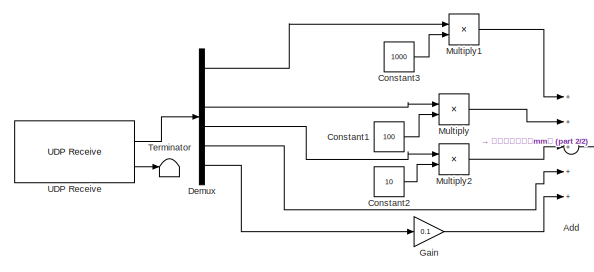
[diagram: root canvas - part 1/2, top left region]
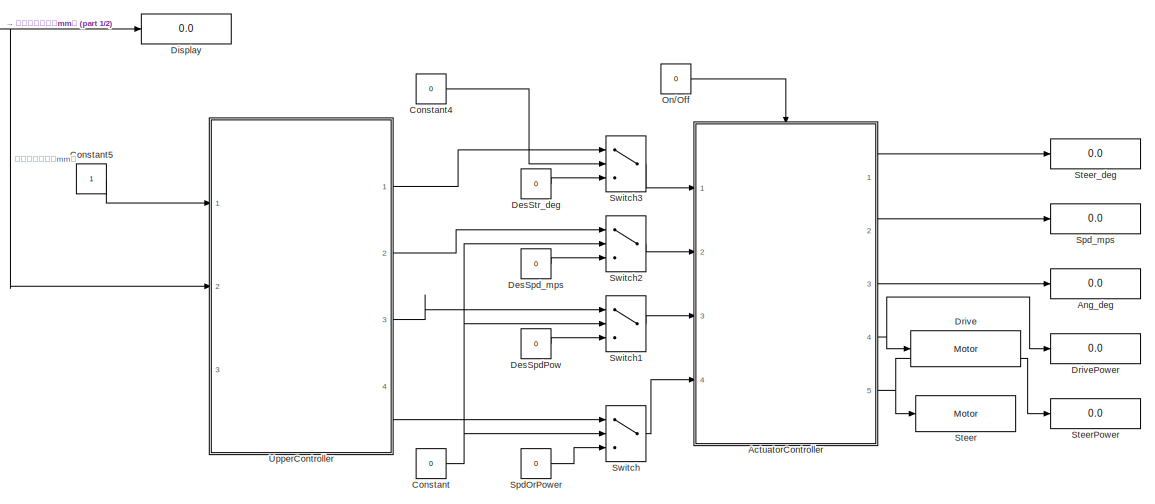
[diagram: root canvas - part 2/2, right side, full height]
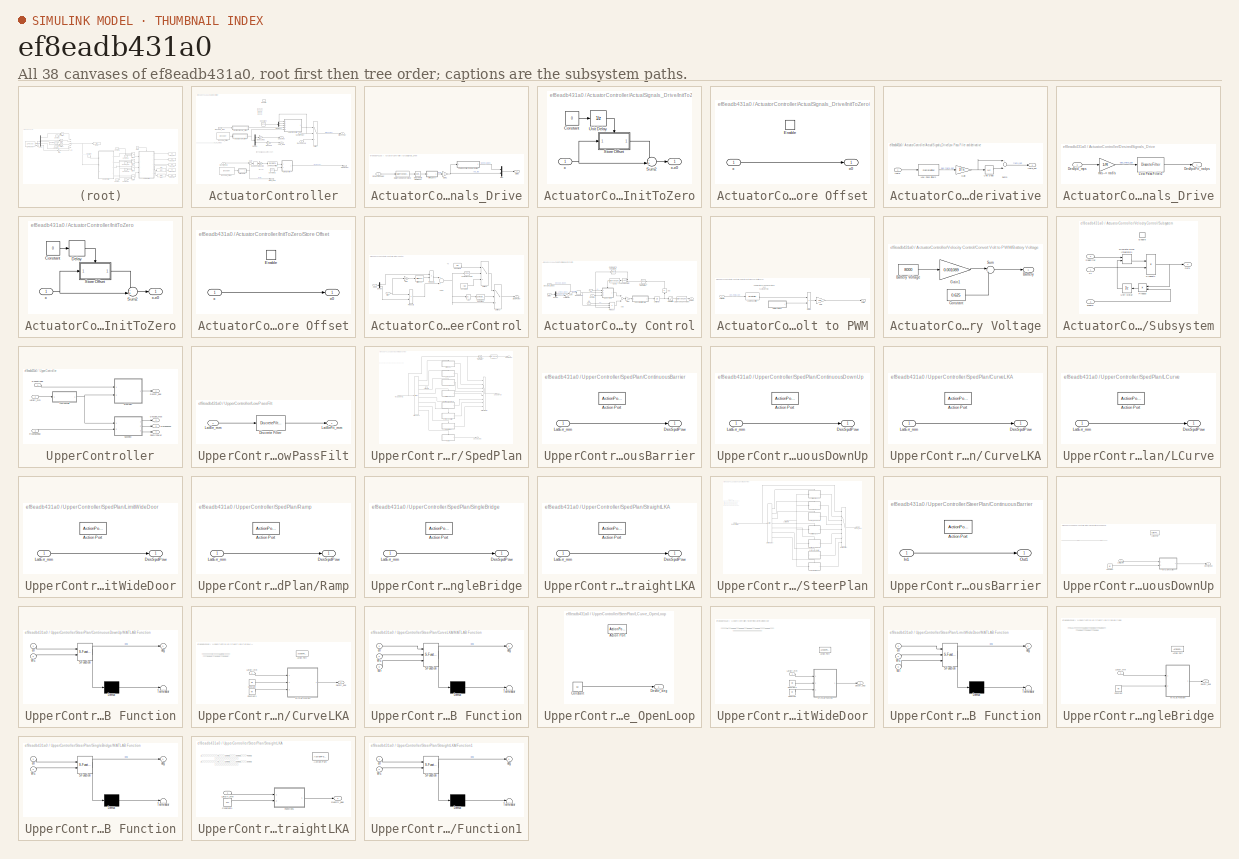
[diagram: thumbnail index - all 38 canvases of the model, root first then tree order]
MODEL slx_ef8eadb431a0
KIND model
CONFIG AbsTol = auto
CONFIG EnableMultiTasking = on
CONFIG FixedStep = auto
CONFIG InitFcn = Ts=0.015; %采样时间\nR=0.0344 %车轮半径，m\nWr=290 %赛道宽度290mm\nWc=187 %小车宽度187mm\nWl=250; %限宽门宽度250mm\nK1=[0.4175;0.5498]; %速度控制的Ki、Kp参数\nK2=[0.02;0.7]; %转向控制的Kd、Kp参数
CONFIG MaxStep = auto
CONFIG MinStep = auto
CONFIG RelTol = 1e-3
CONFIG SampleTimeConstraint = Unconstrained
CONFIG Solver = ode45
CONFIG SolverName = ode45
CONFIG StartTime = 0.0
CONFIG StopTime = 10.0
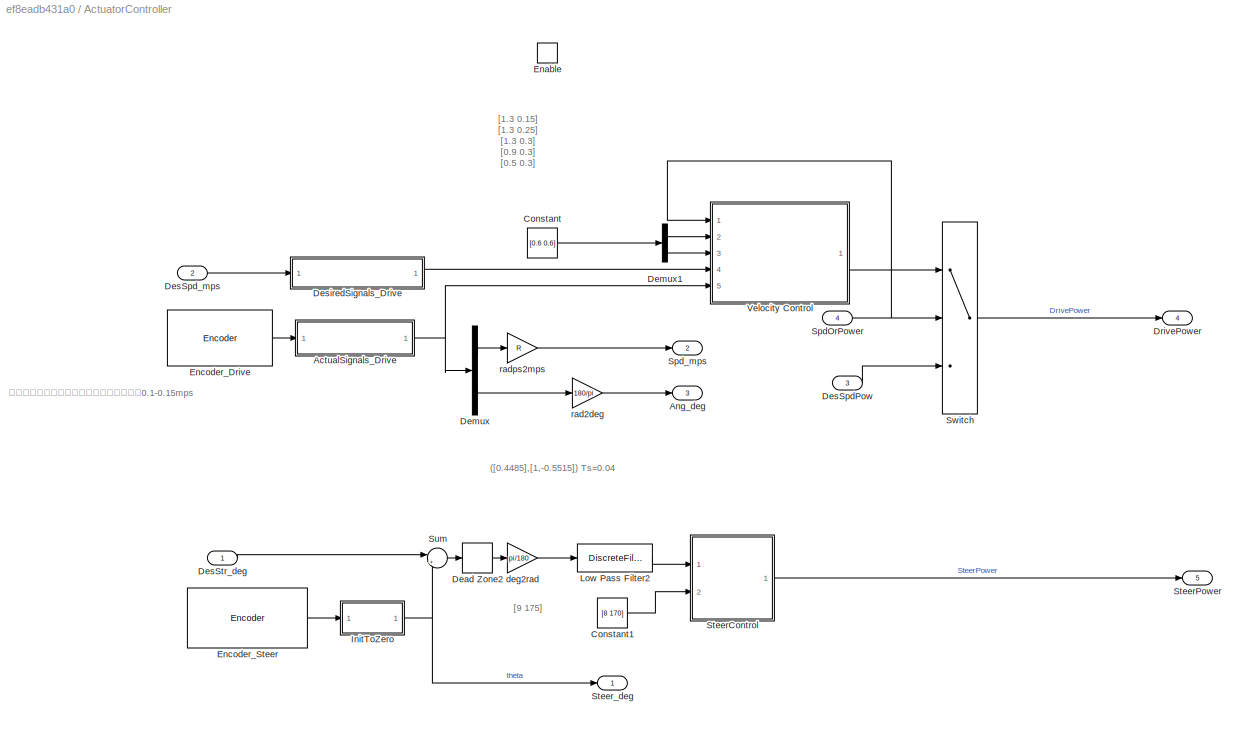
BLOCK [SubSystem] ActuatorController
  Ports = [4, 5, 1]
  RequestExecContextInheritance = off
BLOCK [SubSystem] ActuatorController/ActualSignals_Drive
  Ports = [1, 1]
  RequestExecContextInheritance = off
BLOCK [DataTypeConversion] ActuatorController/ActualSignals_Drive/Data Type Conversion2
  OutDataTypeStr = double
  RndMeth = Floor
  SaturateOnIntegerOverflow = off
BLOCK [Reference] ActuatorController/ActualSignals_Drive/Degrees to Radians2  REF=simulink_extras/Transformations/Degrees to
Radians
  Ports = [1, 1]
  SourceBlock = simulink_extras/Transformations/Degrees to\nRadians
  SourceProductBaseCode = SL
  SourceProductName = Simulink
  SourceType = DegreesToRadians
BLOCK [Inport] ActuatorController/ActualSignals_Drive/DriverEncoder
  IconDisplay = Port number
BLOCK [Gain] ActuatorController/ActualSignals_Drive/Gain1
  Gain = -1
  OutDataTypeStr = Inherit: Inherit via internal rule
  ParamDataTypeStr = Inherit: Inherit via internal rule
  SaturateOnIntegerOverflow = off
BLOCK [SubSystem] ActuatorController/ActualSignals_Drive/InitToZero
  Ports = [1, 1]
  RequestExecContextInheritance = off
BLOCK [Constant] ActuatorController/ActualSignals_Drive/InitToZero/Constant
  OutDataTypeStr = boolean
  Value = 0
BLOCK [SubSystem] ActuatorController/ActualSignals_Drive/InitToZero/Store Offset
  Ports = [1, 1, 1]
  RequestExecContextInheritance = off
  TreatAsAtomicUnit = on
BLOCK [EnablePort] ActuatorController/ActualSignals_Drive/InitToZero/Store Offset/Enable
  Ports = []
BLOCK [Inport] ActuatorController/ActualSignals_Drive/InitToZero/Store Offset/x
  IconDisplay = Port number
BLOCK [Outport] ActuatorController/ActualSignals_Drive/InitToZero/Store Offset/x0
  IconDisplay = Port number
  InitialOutput = 0
BLOCK [Sum] ActuatorController/ActualSignals_Drive/InitToZero/Sum2
  IconShape = round
  InputSameDT = off
  Inputs = -+|
  OutDataTypeStr = Inherit: Inherit via internal rule
  Ports = [2, 1]
  SaturateOnIntegerOverflow = off
BLOCK [UnitDelay] ActuatorController/ActualSignals_Drive/InitToZero/Unit Delay
  InitialCondition = 1
  InputProcessing = Elements as channels (sample based)
  SampleTime = -1
BLOCK [Inport] ActuatorController/ActualSignals_Drive/InitToZero/x
  IconDisplay = Port number
BLOCK [Outport] ActuatorController/ActualSignals_Drive/InitToZero/x-x0
  IconDisplay = Port number
BLOCK [SubSystem] ActuatorController/ActualSignals_Drive/Low Pass Filer and derivative
  Ports = [1, 1]
  RequestExecContextInheritance = off
BLOCK [Gain] ActuatorController/ActualSignals_Drive/Low Pass Filer and derivative/Gain
  Gain = 1/Ts
  OutDataTypeStr = Inherit: Inherit via internal rule
  ParamDataTypeStr = Inherit: Inherit via internal rule
  SaturateOnIntegerOverflow = off
BLOCK [DiscreteFilter] ActuatorController/ActualSignals_Drive/Low Pass Filer and derivative/Low Pass Filter2
  Denominator = [1 -0.85]
  InputPortMap = u0
  Numerator = [0.15]
  Ports = [1, 1]
BLOCK [Sum] ActuatorController/ActualSignals_Drive/Low Pass Filer and derivative/Sum3
  InputSameDT = off
  Inputs = +-
  OutDataTypeStr = Inherit: Inherit via internal rule
  Ports = [2, 1]
  SaturateOnIntegerOverflow = off
BLOCK [UnitDelay] ActuatorController/ActualSignals_Drive/Low Pass Filer and derivative/Unit Delay
  InputProcessing = Elements as channels (sample based)
  SampleTime = -1
BLOCK [Inport] ActuatorController/ActualSignals_Drive/Low Pass Filer and derivative/theta
  IconDisplay = Port number
BLOCK [Outport] ActuatorController/ActualSignals_Drive/Low Pass Filer and derivative/theta_dot
  IconDisplay = Port number
BLOCK [Mux] ActuatorController/ActualSignals_Drive/Mux
  DisplayOption = bar
  Inputs = 2
  Ports = [2, 1]
BLOCK [Outport] ActuatorController/ActualSignals_Drive/States 
  IconDisplay = Port number
BLOCK [Outport] ActuatorController/Ang_deg
  IconDisplay = Port number
  Port = 3
BLOCK [Constant] ActuatorController/Constant
  Value = [0.6 0.6]
BLOCK [Constant] ActuatorController/Constant1
  Value = [8 170]
BLOCK [DeadZone] ActuatorController/Dead Zone2
  LowerValue = -1
  UpperValue = 1
BLOCK [Demux] ActuatorController/Demux
  DisplayOption = bar
  Outputs = 2
  Ports = [1, 2]
BLOCK [Demux] ActuatorController/Demux1
  DisplayOption = bar
  Outputs = 2
  Ports = [1, 2]
BLOCK [Inport] ActuatorController/DesSpdPow
  IconDisplay = Port number
  Port = 3
BLOCK [Inport] ActuatorController/DesSpd_mps
  IconDisplay = Port number
  Port = 2
BLOCK [Inport] ActuatorController/DesStr_deg
  IconDisplay = Port number
BLOCK [SubSystem] ActuatorController/DesiredSignals_Drive
  Ports = [1, 1]
  RequestExecContextInheritance = off
BLOCK [Outport] ActuatorController/DesiredSignals_Drive/DesSpdFit_radps
  IconDisplay = Port number
BLOCK [Inport] ActuatorController/DesiredSignals_Drive/DesSpd_mps
  IconDisplay = Port number
BLOCK [DiscreteFilter] ActuatorController/DesiredSignals_Drive/Low Pass Filter2
  Denominator = [1 -0.85]
  InputPortMap = u0
  Numerator = [0.15]
  Ports = [1, 1]
BLOCK [Gain] ActuatorController/DesiredSignals_Drive/m//s --> rad//s
  Gain = 1/R
  OutDataTypeStr = Inherit: Inherit via internal rule
  ParamDataTypeStr = Inherit: Inherit via internal rule
  SaturateOnIntegerOverflow = off
BLOCK [Outport] ActuatorController/DrivePower
  IconDisplay = Port number
  InitialOutput = 0
  OutputWhenDisabled = reset
  Port = 4
BLOCK [EnablePort] ActuatorController/Enable
  Ports = []
  StatesWhenEnabling = reset
BLOCK [Reference] ActuatorController/Encoder_Drive  REF=legoev3lib/Encoder
  Ports = [0, 1]
  SourceBlock = legoev3lib/Encoder
  SourceProductBaseCode = LEGOEV3
  SourceProductName = Simulink Support Package for LEGO MINDSTORMS EV3 Hardware
  SourceType = LEGO MINDSTORMS EV3 Encoder
BLOCK [Reference] ActuatorController/Encoder_Steer  REF=legoev3lib/Encoder
  Ports = [0, 1]
  SourceBlock = legoev3lib/Encoder
  SourceProductBaseCode = LEGOEV3
  SourceProductName = Simulink Support Package for LEGO MINDSTORMS EV3 Hardware
  SourceType = LEGO MINDSTORMS EV3 Encoder
BLOCK [SubSystem] ActuatorController/InitToZero
  Ports = [1, 1]
  RequestExecContextInheritance = off
BLOCK [Constant] ActuatorController/InitToZero/Constant
  OutDataTypeStr = boolean
  Value = 0
BLOCK [Delay] ActuatorController/InitToZero/Delay
  DelayLength = 3
  InitialCondition = 1
  InputPortMap = u0
  Ports = [1, 1]
BLOCK [SubSystem] ActuatorController/InitToZero/Store Offset
  Ports = [1, 1, 1]
  RequestExecContextInheritance = off
  TreatAsAtomicUnit = on
BLOCK [EnablePort] ActuatorController/InitToZero/Store Offset/Enable
  Ports = []
BLOCK [Inport] ActuatorController/InitToZero/Store Offset/x
  IconDisplay = Port number
BLOCK [Outport] ActuatorController/InitToZero/Store Offset/x0
  IconDisplay = Port number
  InitialOutput = 0
BLOCK [Sum] ActuatorController/InitToZero/Sum2
  IconShape = round
  InputSameDT = off
  Inputs = -+|
  OutDataTypeStr = Inherit: Inherit via internal rule
  Ports = [2, 1]
  SaturateOnIntegerOverflow = off
BLOCK [Inport] ActuatorController/InitToZero/x
  IconDisplay = Port number
BLOCK [Outport] ActuatorController/InitToZero/x-x0
  IconDisplay = Port number
BLOCK [DiscreteFilter] ActuatorController/Low Pass Filter2
  Denominator = [1 -0.8]
  InputPortMap = u0
  Numerator = [.2]
  Ports = [1, 1]
BLOCK [Inport] ActuatorController/SpdOrPower
  IconDisplay = Port number
  Port = 4
BLOCK [Outport] ActuatorController/Spd_mps
  IconDisplay = Port number
  Port = 2
BLOCK [SubSystem] ActuatorController/SteerControl
  Ports = [2, 1]
  RequestExecContextInheritance = off
BLOCK [Abs] ActuatorController/SteerControl/Abs
  SaturateOnIntegerOverflow = off
BLOCK [Sum] ActuatorController/SteerControl/Add2
  InputSameDT = off
  OutDataTypeStr = Inherit: Inherit via internal rule
  Ports = [2, 1]
  SaturateOnIntegerOverflow = off
BLOCK [Reference] ActuatorController/SteerControl/Compare To Constant  REF=simulink/Logic and Bit
Operations/Compare
To Constant
  Ports = [1, 1]
  SourceBlock = simulink/Logic and Bit\nOperations/Compare\nTo Constant
  SourceProductBaseCode = SL
  SourceProductName = Simulink
  SourceType = Compare To Constant
BLOCK [Reference] ActuatorController/SteerControl/Compare To Zero  REF=simulink/Logic and Bit
Operations/Compare
To Zero
  Ports = [1, 1]
  SourceBlock = simulink/Logic and Bit\nOperations/Compare\nTo Zero
  SourceProductBaseCode = SL
  SourceProductName = Simulink
  SourceType = Compare To Zero
BLOCK [Constant] ActuatorController/SteerControl/Constant1
  Value = 60
BLOCK [Constant] ActuatorController/SteerControl/Constant2
  Value = -60
BLOCK [Demux] ActuatorController/SteerControl/Demux
  DisplayOption = bar
  Outputs = 2
  Ports = [1, 2]
BLOCK [Reference] ActuatorController/SteerControl/Difference  REF=simulink/Discrete/Difference
  Ports = [1, 1]
  SourceBlock = simulink/Discrete/Difference
  SourceProductBaseCode = SL
  SourceProductName = Simulink
  SourceType = Difference
BLOCK [Inport] ActuatorController/SteerControl/Error
  IconDisplay = Port number
BLOCK [Gain] ActuatorController/SteerControl/Gain
  Gain = 1/Ts
  OutDataTypeStr = Inherit: Inherit via internal rule
  ParamDataTypeStr = Inherit: Inherit via internal rule
  SaturateOnIntegerOverflow = off
BLOCK [Inport] ActuatorController/SteerControl/KdKp
  IconDisplay = Port number
  Port = 2
BLOCK [Product] ActuatorController/SteerControl/Product2
  InputSameDT = off
  OutDataTypeStr = Inherit: Inherit via internal rule
  Ports = [2, 1]
  RndMeth = Floor
  SaturateOnIntegerOverflow = off
BLOCK [Product] ActuatorController/SteerControl/Product3
  InputSameDT = off
  OutDataTypeStr = Inherit: Inherit via internal rule
  Ports = [2, 1]
  RndMeth = Floor
  SaturateOnIntegerOverflow = off
BLOCK [Outport] ActuatorController/SteerControl/SteerPower
  IconDisplay = Port number
BLOCK [Switch] ActuatorController/SteerControl/Switch1
  Criteria = u2 > Threshold
  InputSameDT = off
  SaturateOnIntegerOverflow = off
BLOCK [Switch] ActuatorController/SteerControl/Switch2
  Criteria = u2 > Threshold
  InputSameDT = off
  SaturateOnIntegerOverflow = off
BLOCK [Outport] ActuatorController/SteerPower
  IconDisplay = Port number
  InitialOutput = 0
  OutputWhenDisabled = reset
  Port = 5
BLOCK [Outport] ActuatorController/Steer_deg
  IconDisplay = Port number
BLOCK [Sum] ActuatorController/Sum
  IconShape = round
  InputSameDT = off
  Inputs = |+-
  OutDataTypeStr = Inherit: Inherit via internal rule
  Ports = [2, 1]
  SaturateOnIntegerOverflow = off
BLOCK [Switch] ActuatorController/Switch
  Criteria = u2 > Threshold
  InputSameDT = off
  SaturateOnIntegerOverflow = off
  Threshold = 0.5
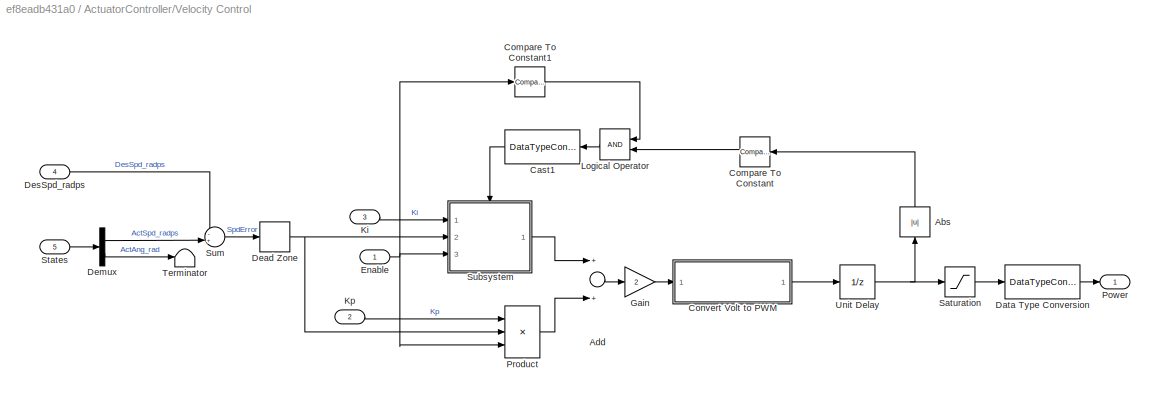
BLOCK [SubSystem] ActuatorController/Velocity Control
  Ports = [5, 1]
  RequestExecContextInheritance = off
BLOCK [Abs] ActuatorController/Velocity Control/Abs
  SaturateOnIntegerOverflow = off
BLOCK [Sum] ActuatorController/Velocity Control/Add
  InputSameDT = off
  OutDataTypeStr = Inherit: Inherit via internal rule
  Ports = [2, 1]
  SaturateOnIntegerOverflow = off
BLOCK [DataTypeConversion] ActuatorController/Velocity Control/Cast1
  RndMeth = Floor
  SaturateOnIntegerOverflow = off
BLOCK [Reference] ActuatorController/Velocity Control/Compare To Constant  REF=simulink/Logic and Bit
Operations/Compare
To Constant
  Ports = [1, 1]
  SourceBlock = simulink/Logic and Bit\nOperations/Compare\nTo Constant
  SourceProductBaseCode = SL
  SourceProductName = Simulink
  SourceType = Compare To Constant
BLOCK [Reference] ActuatorController/Velocity Control/Compare To Constant1  REF=simulink/Logic and Bit
Operations/Compare
To Constant
  Ports = [1, 1]
  SourceBlock = simulink/Logic and Bit\nOperations/Compare\nTo Constant
  SourceProductBaseCode = SL
  SourceProductName = Simulink
  SourceType = Compare To Constant
BLOCK [SubSystem] ActuatorController/Velocity Control/Convert Volt to PWM
  Ports = [1, 1]
  RequestExecContextInheritance = off
BLOCK [SubSystem] ActuatorController/Velocity Control/Convert Volt to PWM/Battery Voltage
  Ports = [0, 1]
  RequestExecContextInheritance = off
BLOCK [Outport] ActuatorController/Velocity Control/Convert Volt to PWM/Battery Voltage/Battery
  IconDisplay = Port number
BLOCK [Constant] ActuatorController/Velocity Control/Convert Volt to PWM/Battery Voltage/Battery Voltage
  Value = 8000
BLOCK [Constant] ActuatorController/Velocity Control/Convert Volt to PWM/Battery Voltage/Constant
  Value = 0.625
BLOCK [Gain] ActuatorController/Velocity Control/Convert Volt to PWM/Battery Voltage/Gain1
  Gain = 0.001089
  OutDataTypeStr = Inherit: Inherit via internal rule
  ParamDataTypeStr = Inherit: Inherit via internal rule
  SaturateOnIntegerOverflow = off
BLOCK [Sum] ActuatorController/Velocity Control/Convert Volt to PWM/Battery Voltage/Sum
  IconShape = round
  InputSameDT = off
  Inputs = |+-
  OutDataTypeStr = Inherit: Inherit via internal rule
  Ports = [2, 1]
  SaturateOnIntegerOverflow = off
BLOCK [Product] ActuatorController/Velocity Control/Convert Volt to PWM/Divide
  InputSameDT = off
  Inputs = */
  OutDataTypeStr = Inherit: Inherit via internal rule
  Ports = [2, 1]
  RndMeth = Floor
  SaturateOnIntegerOverflow = off
BLOCK [Gain] ActuatorController/Velocity Control/Convert Volt to PWM/Gain
  Gain = 100
  OutDataTypeStr = Inherit: Inherit via internal rule
  ParamDataTypeStr = Inherit: Inherit via internal rule
  SaturateOnIntegerOverflow = off
BLOCK [DiscreteFilter] ActuatorController/Velocity Control/Convert Volt to PWM/Low Pass Filter
  Denominator = [1 -0.85]
  InputPortMap = u0
  Numerator = [0.15]
  Ports = [1, 1]
BLOCK [Outport] ActuatorController/Velocity Control/Convert Volt to PWM/PWM
  IconDisplay = Port number
BLOCK [Inport] ActuatorController/Velocity Control/Convert Volt to PWM/Volt Cmd
  IconDisplay = Port number
BLOCK [DataTypeConversion] ActuatorController/Velocity Control/Data Type Conversion
  OutDataTypeStr = int8
  RndMeth = Floor
  SaturateOnIntegerOverflow = off
BLOCK [DeadZone] ActuatorController/Velocity Control/Dead Zone
  LowerValue = -0.01
  UpperValue = 0.01
BLOCK [Demux] ActuatorController/Velocity Control/Demux
  DisplayOption = bar
  Outputs = 2
  Ports = [1, 2]
BLOCK [Inport] ActuatorController/Velocity Control/DesSpd_radps
  IconDisplay = Port number
  Port = 4
BLOCK [Inport] ActuatorController/Velocity Control/Enable 
  IconDisplay = Port number
BLOCK [Gain] ActuatorController/Velocity Control/Gain
  Gain = 2
  OutDataTypeStr = Inherit: Inherit via internal rule
  ParamDataTypeStr = Inherit: Inherit via internal rule
  SaturateOnIntegerOverflow = off
BLOCK [Inport] ActuatorController/Velocity Control/Ki
  IconDisplay = Port number
  Port = 3
BLOCK [Inport] ActuatorController/Velocity Control/Kp
  IconDisplay = Port number
  Port = 2
BLOCK [Logic] ActuatorController/Velocity Control/Logical Operator
  AllPortsSameDT = off
  OutDataTypeStr = boolean
  Ports = [2, 1]
BLOCK [Outport] ActuatorController/Velocity Control/Power
  IconDisplay = Port number
  InitialOutput = 0
  OutputWhenDisabled = reset
BLOCK [Product] ActuatorController/Velocity Control/Product
  InputSameDT = off
  Inputs = 3
  OutDataTypeStr = Inherit: Inherit via internal rule
  Ports = [3, 1]
  RndMeth = Floor
  SaturateOnIntegerOverflow = off
BLOCK [Saturate] ActuatorController/Velocity Control/Saturation
  InputPortMap = u0
  LowerLimit = -100
  Ports = [1, 1]
  UpperLimit = 100
BLOCK [Inport] ActuatorController/Velocity Control/States
  IconDisplay = Port number
  Port = 5
BLOCK [SubSystem] ActuatorController/Velocity Control/Subsystem
  Ports = [3, 1, 1]
  RequestExecContextInheritance = off
BLOCK [DiscreteIntegrator] ActuatorController/Velocity Control/Subsystem/Discrete-Time Integrator1
  ICPrevOutput = DiscIntNeverNeededParam
  ICPrevScaledInput = DiscIntNeverNeededParam
  InitialConditionSource = external
  Ports = [2, 1]
  SampleTime = -1
BLOCK [EnablePort] ActuatorController/Velocity Control/Subsystem/Enable
  Ports = []
  StatesWhenEnabling = reset
BLOCK [Inport] ActuatorController/Velocity Control/Subsystem/Ki
  IconDisplay = Port number
BLOCK [Outport] ActuatorController/Velocity Control/Subsystem/Out1
  IconDisplay = Port number
BLOCK [Product] ActuatorController/Velocity Control/Subsystem/Product
  InputSameDT = off
  OutDataTypeStr = Inherit: Inherit via internal rule
  Ports = [2, 1]
  RndMeth = Floor
  SaturateOnIntegerOverflow = off
BLOCK [Product] ActuatorController/Velocity Control/Subsystem/Product1
  InputSameDT = off
  OutDataTypeStr = Inherit: Inherit via internal rule
  Ports = [2, 1]
  RndMeth = Floor
  SaturateOnIntegerOverflow = off
BLOCK [Inport] ActuatorController/Velocity Control/Subsystem/SpdError
  IconDisplay = Port number
  Port = 2
BLOCK [UnitDelay] ActuatorController/Velocity Control/Subsystem/Unit Delay
  InputProcessing = Elements as channels (sample based)
  SampleTime = -1
BLOCK [Inport] ActuatorController/Velocity Control/Subsystem/enable
  IconDisplay = Port number
  Port = 3
BLOCK [Sum] ActuatorController/Velocity Control/Sum
  IconShape = round
  InputSameDT = off
  Inputs = -+|
  OutDataTypeStr = Inherit: Inherit via internal rule
  Ports = [2, 1]
  SaturateOnIntegerOverflow = off
BLOCK [Terminator] ActuatorController/Velocity Control/Terminator
BLOCK [UnitDelay] ActuatorController/Velocity Control/Unit Delay
  InputProcessing = Elements as channels (sample based)
  SampleTime = -1
BLOCK [Gain] ActuatorController/deg2rad
  Gain = pi/180
  OutDataTypeStr = Inherit: Inherit via internal rule
  ParamDataTypeStr = Inherit: Inherit via internal rule
  SaturateOnIntegerOverflow = off
BLOCK [Gain] ActuatorController/rad2deg
  Gain = 180/pi
  OutDataTypeStr = Inherit: Inherit via internal rule
  ParamDataTypeStr = Inherit: Inherit via internal rule
  SaturateOnIntegerOverflow = off
BLOCK [Gain] ActuatorController/radps2mps
  Gain = R
  OutDataTypeStr = Inherit: Inherit via internal rule
  ParamDataTypeStr = Inherit: Inherit via internal rule
  SaturateOnIntegerOverflow = off
BLOCK [Sum] Add
  InputSameDT = off
  Inputs = +++++
  OutDataTypeStr = Inherit: Inherit via internal rule
  Ports = [5, 1]
  SaturateOnIntegerOverflow = off
BLOCK [Display] Ang_deg
  Decimation = 1
  Ports = [1]
BLOCK [Constant] Constant
  Value = 0
BLOCK [Constant] Constant1
  Value = 100
BLOCK [Constant] Constant2
  Value = 10
BLOCK [Constant] Constant3
  Value = 1000
BLOCK [Constant] Constant4
  Value = 0
BLOCK [Constant] Constant5
BLOCK [Demux] Demux
  DisplayOption = bar
  Outputs = 6
  Ports = [1, 6]
BLOCK [Constant] DesSpdPow
  Value = 0
BLOCK [Constant] DesSpd_mps
  Value = 0
BLOCK [Constant] DesStr_deg
  Value = 0
BLOCK [Display] Display
  Decimation = 1
  Ports = [1]
BLOCK [Reference] Drive  REF=legoev3lib/Motor
  Ports = [1]
  SourceBlock = legoev3lib/Motor
  SourceProductBaseCode = LEGOEV3
  SourceProductName = Simulink Support Package for LEGO MINDSTORMS EV3 Hardware
  SourceType = LEGO MINDSTORMS EV3 Motor
BLOCK [Display] DrivePower
  Decimation = 1
  Ports = [1]
BLOCK [Gain] Gain
  Gain = 0.1
  OutDataTypeStr = Inherit: Inherit via internal rule
  ParamDataTypeStr = Inherit: Inherit via internal rule
  SaturateOnIntegerOverflow = off
BLOCK [Product] Multiply
  InputSameDT = off
  OutDataTypeStr = Inherit: Inherit via internal rule
  Ports = [2, 1]
  RndMeth = Floor
  SaturateOnIntegerOverflow = off
BLOCK [Product] Multiply1
  InputSameDT = off
  OutDataTypeStr = Inherit: Inherit via internal rule
  Ports = [2, 1]
  RndMeth = Floor
  SaturateOnIntegerOverflow = off
BLOCK [Product] Multiply2
  InputSameDT = off
  OutDataTypeStr = Inherit: Inherit via internal rule
  Ports = [2, 1]
  RndMeth = Floor
  SaturateOnIntegerOverflow = off
BLOCK [Constant] On//Off
  Value = 0
BLOCK [Constant] SpdOrPower
  Value = 0
BLOCK [Display] Spd_mps
  Decimation = 1
  Ports = [1]
BLOCK [Reference] Steer  REF=legoev3lib/Motor
  Ports = [1]
  SourceBlock = legoev3lib/Motor
  SourceProductBaseCode = LEGOEV3
  SourceProductName = Simulink Support Package for LEGO MINDSTORMS EV3 Hardware
  SourceType = LEGO MINDSTORMS EV3 Motor
BLOCK [Display] SteerPower
  Decimation = 1
  Ports = [1]
BLOCK [Display] Steer_deg
  Decimation = 1
  Ports = [1]
BLOCK [Switch] Switch
  Criteria = u2 > Threshold
  InputSameDT = off
  SaturateOnIntegerOverflow = off
BLOCK [Switch] Switch1
  Criteria = u2 > Threshold
  InputSameDT = off
  SaturateOnIntegerOverflow = off
BLOCK [Switch] Switch2
  Criteria = u2 > Threshold
  InputSameDT = off
  SaturateOnIntegerOverflow = off
BLOCK [Switch] Switch3
  Criteria = u2 > Threshold
  InputSameDT = off
  SaturateOnIntegerOverflow = off
BLOCK [Terminator] Terminator
BLOCK [Reference] UDP Receive  REF=legoev3lib/UDP Receive
  Ports = [0, 2]
  SourceBlock = legoev3lib/UDP Receive
  SourceProductBaseCode = LEGOEV3
  SourceProductName = Simulink Support Package for LEGO MINDSTORMS EV3 Hardware
  SourceType = UDP Receive
BLOCK [SubSystem] UpperController
  Ports = [3, 4]
  RequestExecContextInheritance = off
BLOCK [Outport] UpperController/DesSpdPow
  IconDisplay = Port number
  Port = 3
BLOCK [Outport] UpperController/DesSpd_mps
  IconDisplay = Port number
  Port = 2
BLOCK [Outport] UpperController/DesStr_deg
  IconDisplay = Port number
BLOCK [Inport] UpperController/LatErr_mm
  IconDisplay = Port number
  Port = 2
BLOCK [SubSystem] UpperController/LowPassFilt
  Ports = [1, 1]
  RequestExecContextInheritance = off
BLOCK [DiscreteFilter] UpperController/LowPassFilt/Discrete Filter
  Denominator = [1 -0.4331]
  InputPortMap = u0
  Numerator = [0.2 0.3669]
  Ports = [1, 1]
BLOCK [Outport] UpperController/LowPassFilt/LatErrFit_mm
  IconDisplay = Port number
BLOCK [Inport] UpperController/LowPassFilt/LatErr_mm
  IconDisplay = Port number
BLOCK [Inport] UpperController/RoadSpdFlag
  IconDisplay = Port number
  Port = 3
BLOCK [Inport] UpperController/RoadStrFlag
  IconDisplay = Port number
BLOCK [Outport] UpperController/SpdOrPower
  IconDisplay = Port number
  Port = 4
BLOCK [SubSystem] UpperController/SpedPlan
  Ports = [2, 3]
  RequestExecContextInheritance = off
BLOCK [DataTypeConversion] UpperController/SpedPlan/Cast
  RndMeth = Floor
  SaturateOnIntegerOverflow = off
BLOCK [Reference] UpperController/SpedPlan/Compare To Constant  REF=simulink/Logic and Bit
Operations/Compare
To Constant
  Ports = [1, 1]
  SourceBlock = simulink/Logic and Bit\nOperations/Compare\nTo Constant
  SourceProductBaseCode = SL
  SourceProductName = Simulink
  SourceType = Compare To Constant
BLOCK [SubSystem] UpperController/SpedPlan/ContinuousBarrier
  Ports = [1, 1, 0, 0, 0, 0, 0, 1]
  RequestExecContextInheritance = off
  TreatAsAtomicUnit = on
BLOCK [ActionPort] UpperController/SpedPlan/ContinuousBarrier/Action Port
  ActionType = case
BLOCK [Outport] UpperController/SpedPlan/ContinuousBarrier/DesSpdPow
  IconDisplay = Port number
BLOCK [Inport] UpperController/SpedPlan/ContinuousBarrier/LatErr_mm
  IconDisplay = Port number
BLOCK [SubSystem] UpperController/SpedPlan/ContinuousDownUp
  Ports = [1, 1, 0, 0, 0, 0, 0, 1]
  RequestExecContextInheritance = off
  TreatAsAtomicUnit = on
BLOCK [ActionPort] UpperController/SpedPlan/ContinuousDownUp/Action Port
  ActionType = case
BLOCK [Outport] UpperController/SpedPlan/ContinuousDownUp/DesSpdPow
  IconDisplay = Port number
BLOCK [Inport] UpperController/SpedPlan/ContinuousDownUp/LatErr_mm
  IconDisplay = Port number
BLOCK [SubSystem] UpperController/SpedPlan/CurveLKA
  Ports = [1, 1, 0, 0, 0, 0, 0, 1]
  RequestExecContextInheritance = off
  TreatAsAtomicUnit = on
BLOCK [ActionPort] UpperController/SpedPlan/CurveLKA/Action Port
  ActionType = case
BLOCK [Outport] UpperController/SpedPlan/CurveLKA/DesSpdPow
  IconDisplay = Port number
BLOCK [Inport] UpperController/SpedPlan/CurveLKA/LatErr_mm
  IconDisplay = Port number
BLOCK [Outport] UpperController/SpedPlan/DesSpdPow
  IconDisplay = Port number
  Port = 2
BLOCK [Outport] UpperController/SpedPlan/DesSpd_mps
  IconDisplay = Port number
BLOCK [SubSystem] UpperController/SpedPlan/LCurve
  Ports = [1, 1, 0, 0, 0, 0, 0, 1]
  RequestExecContextInheritance = off
  TreatAsAtomicUnit = on
BLOCK [ActionPort] UpperController/SpedPlan/LCurve/Action Port
  ActionType = case
BLOCK [Outport] UpperController/SpedPlan/LCurve/DesSpdPow
  IconDisplay = Port number
BLOCK [Inport] UpperController/SpedPlan/LCurve/LatErr_mm
  IconDisplay = Port number
BLOCK [Inport] UpperController/SpedPlan/LatErr_mm
  IconDisplay = Port number
BLOCK [SubSystem] UpperController/SpedPlan/LimitWideDoor
  Ports = [1, 1, 0, 0, 0, 0, 0, 1]
  RequestExecContextInheritance = off
  TreatAsAtomicUnit = on
BLOCK [ActionPort] UpperController/SpedPlan/LimitWideDoor/Action Port
  ActionType = case
BLOCK [Outport] UpperController/SpedPlan/LimitWideDoor/DesSpdPow
  IconDisplay = Port number
BLOCK [Inport] UpperController/SpedPlan/LimitWideDoor/LatErr_mm
  IconDisplay = Port number
BLOCK [MultiPortSwitch] UpperController/SpedPlan/Multiport Switch
  InputSameDT = off
  Inputs = 7
  Ports = [8, 1]
  SaturateOnIntegerOverflow = off
BLOCK [SubSystem] UpperController/SpedPlan/Ramp
  Ports = [1, 1, 0, 0, 0, 0, 0, 1]
  RequestExecContextInheritance = off
  TreatAsAtomicUnit = on
BLOCK [ActionPort] UpperController/SpedPlan/Ramp/Action Port
  ActionType = case
BLOCK [Outport] UpperController/SpedPlan/Ramp/DesSpdPow
  IconDisplay = Port number
BLOCK [Inport] UpperController/SpedPlan/Ramp/LatErr_mm
  IconDisplay = Port number
BLOCK [Inport] UpperController/SpedPlan/RoadSpdFlag
  IconDisplay = Port number
  Port = 2
BLOCK [SubSystem] UpperController/SpedPlan/SingleBridge
  Ports = [1, 1, 0, 0, 0, 0, 0, 1]
  RequestExecContextInheritance = off
  TreatAsAtomicUnit = on
BLOCK [ActionPort] UpperController/SpedPlan/SingleBridge/Action Port
  ActionType = case
BLOCK [Outport] UpperController/SpedPlan/SingleBridge/DesSpdPow
  IconDisplay = Port number
BLOCK [Inport] UpperController/SpedPlan/SingleBridge/LatErr_mm
  IconDisplay = Port number
BLOCK [Outport] UpperController/SpedPlan/SpdOrPower
  IconDisplay = Port number
  Port = 3
BLOCK [SubSystem] UpperController/SpedPlan/StraightLKA
  Ports = [1, 1, 0, 0, 0, 0, 0, 1]
  RequestExecContextInheritance = off
  TreatAsAtomicUnit = on
BLOCK [ActionPort] UpperController/SpedPlan/StraightLKA/Action Port
  ActionType = case
BLOCK [Outport] UpperController/SpedPlan/StraightLKA/DesSpdPow
  IconDisplay = Port number
BLOCK [Inport] UpperController/SpedPlan/StraightLKA/LatErr_mm
  IconDisplay = Port number
BLOCK [SwitchCase] UpperController/SpedPlan/Switch Case
  CaseConditions = {1,2,3,4,5,6,7,8}
  Ports = [1, 8]
  ShowDefaultCase = off
BLOCK [SubSystem] UpperController/SteerPlan
  Ports = [2, 1]
  RequestExecContextInheritance = off
BLOCK [SubSystem] UpperController/SteerPlan/ContinuousBarrier
  Ports = [1, 1, 0, 0, 0, 0, 0, 1]
  RequestExecContextInheritance = off
  TreatAsAtomicUnit = on
BLOCK [ActionPort] UpperController/SteerPlan/ContinuousBarrier/Action Port
  ActionType = case
BLOCK [Inport] UpperController/SteerPlan/ContinuousBarrier/In1
  IconDisplay = Port number
BLOCK [Outport] UpperController/SteerPlan/ContinuousBarrier/Out1
  IconDisplay = Port number
BLOCK [SubSystem] UpperController/SteerPlan/ContinuousDownUp
  Ports = [1, 1, 0, 0, 0, 0, 0, 1]
  RequestExecContextInheritance = off
  TreatAsAtomicUnit = on
BLOCK [ActionPort] UpperController/SteerPlan/ContinuousDownUp/Action Port
  ActionType = case
BLOCK [Constant] UpperController/SteerPlan/ContinuousDownUp/Constant
  Value = Wc
BLOCK [Outport] UpperController/SteerPlan/ContinuousDownUp/DesStr_deg
  IconDisplay = Port number
BLOCK [Inport] UpperController/SteerPlan/ContinuousDownUp/LatErr_mm
  IconDisplay = Port number
BLOCK [SubSystem] UpperController/SteerPlan/ContinuousDownUp/MATLAB Function
  ErrorFcn = Stateflow.Translate.translate
  PermitHierarchicalResolution = ExplicitOnly
  Ports = [2, 1]
  RequestExecContextInheritance = off
  SFBlockType = MATLAB Function
  TreatAsAtomicUnit = on
BLOCK [Demux] UpperController/SteerPlan/ContinuousDownUp/MATLAB Function/ Demux 
  Outputs = 1
  Ports = [1, 1]
BLOCK [S-Function] UpperController/SteerPlan/ContinuousDownUp/MATLAB Function/ SFunction 
  EnableBusSupport = on
  FunctionName = sf_sfun
  PortCounts = [2 2]
  Ports = [2, 2]
  SFcnIsStateOwnerBlock = off
  SFunctionDeploymentMode = off
  Tag = Stateflow S-Function Controller1_2 3
BLOCK [Terminator] UpperController/SteerPlan/ContinuousDownUp/MATLAB Function/ Terminator 
BLOCK [Inport] UpperController/SteerPlan/ContinuousDownUp/MATLAB Function/Wc
  IconDisplay = Port number
  Port = 2
BLOCK [Outport] UpperController/SteerPlan/ContinuousDownUp/MATLAB Function/deg
  IconDisplay = Port number
BLOCK [Inport] UpperController/SteerPlan/ContinuousDownUp/MATLAB Function/err
  IconDisplay = Port number
BLOCK [SubSystem] UpperController/SteerPlan/CurveLKA
  Ports = [1, 1, 0, 0, 0, 0, 0, 1]
  RequestExecContextInheritance = off
  TreatAsAtomicUnit = on
BLOCK [ActionPort] UpperController/SteerPlan/CurveLKA/Action Port
  ActionType = case
BLOCK [Constant] UpperController/SteerPlan/CurveLKA/Constant
  Value = Wc
BLOCK [Constant] UpperController/SteerPlan/CurveLKA/Constant1
  Value = Wr
BLOCK [Outport] UpperController/SteerPlan/CurveLKA/DesStr_deg
  IconDisplay = Port number
BLOCK [Inport] UpperController/SteerPlan/CurveLKA/LatErr_mm
  IconDisplay = Port number
BLOCK [SubSystem] UpperController/SteerPlan/CurveLKA/MATLAB Function
  ErrorFcn = Stateflow.Translate.translate
  PermitHierarchicalResolution = ExplicitOnly
  Ports = [3, 1]
  RequestExecContextInheritance = off
  SFBlockType = MATLAB Function
  TreatAsAtomicUnit = on
BLOCK [Demux] UpperController/SteerPlan/CurveLKA/MATLAB Function/ Demux 
  Outputs = 1
  Ports = [1, 1]
BLOCK [S-Function] UpperController/SteerPlan/CurveLKA/MATLAB Function/ SFunction 
  EnableBusSupport = on
  FunctionName = sf_sfun
  PortCounts = [3 2]
  Ports = [3, 2]
  SFcnIsStateOwnerBlock = off
  SFunctionDeploymentMode = off
  Tag = Stateflow S-Function Controller1_2 1
BLOCK [Terminator] UpperController/SteerPlan/CurveLKA/MATLAB Function/ Terminator 
BLOCK [Inport] UpperController/SteerPlan/CurveLKA/MATLAB Function/Wc
  IconDisplay = Port number
  Port = 2
BLOCK [Inport] UpperController/SteerPlan/CurveLKA/MATLAB Function/Wr
  IconDisplay = Port number
  Port = 3
BLOCK [Outport] UpperController/SteerPlan/CurveLKA/MATLAB Function/deg
  IconDisplay = Port number
BLOCK [Inport] UpperController/SteerPlan/CurveLKA/MATLAB Function/err
  IconDisplay = Port number
BLOCK [Outport] UpperController/SteerPlan/DesStr_deg
  IconDisplay = Port number
BLOCK [SubSystem] UpperController/SteerPlan/LCurve_OpenLoop
  Ports = [0, 1, 0, 0, 0, 0, 0, 1]
  RequestExecContextInheritance = off
  TreatAsAtomicUnit = on
BLOCK [ActionPort] UpperController/SteerPlan/LCurve_OpenLoop/Action Port
  ActionType = case
BLOCK [Constant] UpperController/SteerPlan/LCurve_OpenLoop/Constant
  Value = 50
BLOCK [Outport] UpperController/SteerPlan/LCurve_OpenLoop/DesStr_deg
  IconDisplay = Port number
BLOCK [Inport] UpperController/SteerPlan/LatErr_mm
  IconDisplay = Port number
  Port = 2
BLOCK [SubSystem] UpperController/SteerPlan/LimitWideDoor
  Ports = [1, 1, 0, 0, 0, 0, 0, 1]
  RequestExecContextInheritance = off
  TreatAsAtomicUnit = on
BLOCK [ActionPort] UpperController/SteerPlan/LimitWideDoor/Action Port
  ActionType = case
BLOCK [Constant] UpperController/SteerPlan/LimitWideDoor/Constant
  Value = Wl
BLOCK [Constant] UpperController/SteerPlan/LimitWideDoor/Constant1
  Value = Wc
BLOCK [Outport] UpperController/SteerPlan/LimitWideDoor/DesStr_deg
  IconDisplay = Port number
BLOCK [Inport] UpperController/SteerPlan/LimitWideDoor/LatErr_mm
  IconDisplay = Port number
BLOCK [SubSystem] UpperController/SteerPlan/LimitWideDoor/MATLAB Function
  ErrorFcn = Stateflow.Translate.translate
  PermitHierarchicalResolution = ExplicitOnly
  Ports = [3, 1]
  RequestExecContextInheritance = off
  SFBlockType = MATLAB Function
  TreatAsAtomicUnit = on
BLOCK [Demux] UpperController/SteerPlan/LimitWideDoor/MATLAB Function/ Demux 
  Outputs = 1
  Ports = [1, 1]
BLOCK [S-Function] UpperController/SteerPlan/LimitWideDoor/MATLAB Function/ SFunction 
  EnableBusSupport = on
  FunctionName = sf_sfun
  PortCounts = [3 2]
  Ports = [3, 2]
  SFcnIsStateOwnerBlock = off
  SFunctionDeploymentMode = off
  Tag = Stateflow S-Function Controller1_2 4
BLOCK [Terminator] UpperController/SteerPlan/LimitWideDoor/MATLAB Function/ Terminator 
BLOCK [Inport] UpperController/SteerPlan/LimitWideDoor/MATLAB Function/Wc
  IconDisplay = Port number
  Port = 2
BLOCK [Inport] UpperController/SteerPlan/LimitWideDoor/MATLAB Function/Wl
  IconDisplay = Port number
  Port = 3
BLOCK [Outport] UpperController/SteerPlan/LimitWideDoor/MATLAB Function/deg
  IconDisplay = Port number
BLOCK [Inport] UpperController/SteerPlan/LimitWideDoor/MATLAB Function/err
  IconDisplay = Port number
BLOCK [MultiPortSwitch] UpperController/SteerPlan/Multiport Switch
  InputSameDT = off
  Inputs = 7
  Ports = [8, 1]
  SaturateOnIntegerOverflow = off
BLOCK [Inport] UpperController/SteerPlan/RoadStrFlag
  IconDisplay = Port number
BLOCK [SubSystem] UpperController/SteerPlan/SingleBridge
  Ports = [1, 1, 0, 0, 0, 0, 0, 1]
  RequestExecContextInheritance = off
  TreatAsAtomicUnit = on
BLOCK [ActionPort] UpperController/SteerPlan/SingleBridge/Action Port
  ActionType = case
BLOCK [Constant] UpperController/SteerPlan/SingleBridge/Constant
  Value = Wc
BLOCK [Outport] UpperController/SteerPlan/SingleBridge/DesStr_deg
  IconDisplay = Port number
BLOCK [Inport] UpperController/SteerPlan/SingleBridge/LatErr_mm
  IconDisplay = Port number
BLOCK [SubSystem] UpperController/SteerPlan/SingleBridge/MATLAB Function
  ErrorFcn = Stateflow.Translate.translate
  PermitHierarchicalResolution = ExplicitOnly
  Ports = [2, 1]
  RequestExecContextInheritance = off
  SFBlockType = MATLAB Function
  TreatAsAtomicUnit = on
BLOCK [Demux] UpperController/SteerPlan/SingleBridge/MATLAB Function/ Demux 
  Outputs = 1
  Ports = [1, 1]
BLOCK [S-Function] UpperController/SteerPlan/SingleBridge/MATLAB Function/ SFunction 
  EnableBusSupport = on
  FunctionName = sf_sfun
  PortCounts = [2 2]
  Ports = [2, 2]
  SFcnIsStateOwnerBlock = off
  SFunctionDeploymentMode = off
  Tag = Stateflow S-Function Controller1_2 5
BLOCK [Terminator] UpperController/SteerPlan/SingleBridge/MATLAB Function/ Terminator 
BLOCK [Inport] UpperController/SteerPlan/SingleBridge/MATLAB Function/Wc
  IconDisplay = Port number
  Port = 2
BLOCK [Outport] UpperController/SteerPlan/SingleBridge/MATLAB Function/deg
  IconDisplay = Port number
BLOCK [Inport] UpperController/SteerPlan/SingleBridge/MATLAB Function/err
  IconDisplay = Port number
BLOCK [SubSystem] UpperController/SteerPlan/StraightLKA
  Ports = [1, 1, 0, 0, 0, 0, 0, 1]
  RequestExecContextInheritance = off
  TreatAsAtomicUnit = on
BLOCK [ActionPort] UpperController/SteerPlan/StraightLKA/Action Port
  ActionType = case
BLOCK [Constant] UpperController/SteerPlan/StraightLKA/Constant1
  Value = Wc
BLOCK [Outport] UpperController/SteerPlan/StraightLKA/DesStr_deg
  IconDisplay = Port number
BLOCK [SubSystem] UpperController/SteerPlan/StraightLKA/Function1
  ErrorFcn = Stateflow.Translate.translate
  PermitHierarchicalResolution = ExplicitOnly
  Ports = [2, 1]
  RequestExecContextInheritance = off
  SFBlockType = MATLAB Function
  TreatAsAtomicUnit = on
BLOCK [Demux] UpperController/SteerPlan/StraightLKA/Function1/ Demux 
  Outputs = 1
  Ports = [1, 1]
BLOCK [S-Function] UpperController/SteerPlan/StraightLKA/Function1/ SFunction 
  EnableBusSupport = on
  FunctionName = sf_sfun
  PortCounts = [2 2]
  Ports = [2, 2]
  SFcnIsStateOwnerBlock = off
  SFunctionDeploymentMode = off
  Tag = Stateflow S-Function Controller1_2 2
BLOCK [Terminator] UpperController/SteerPlan/StraightLKA/Function1/ Terminator 
BLOCK [Inport] UpperController/SteerPlan/StraightLKA/Function1/Wc
  IconDisplay = Port number
  Port = 2
BLOCK [Outport] UpperController/SteerPlan/StraightLKA/Function1/deg
  IconDisplay = Port number
BLOCK [Inport] UpperController/SteerPlan/StraightLKA/Function1/err
  IconDisplay = Port number
BLOCK [Inport] UpperController/SteerPlan/StraightLKA/LatErr_mm
  IconDisplay = Port number
BLOCK [SwitchCase] UpperController/SteerPlan/Switch Case
  CaseConditions = {1,2,3,4,5,6,7}
  Ports = [1, 7]
  ShowDefaultCase = off
ANNOTATION ActuatorController: ([0.4485],[1,-0.5515]) Ts=0.04
ANNOTATION ActuatorController: [1.3 0.15] [1.3 0.25] [1.3 0.3] [0.9 0.3] [0.5 0.3]
ANNOTATION ActuatorController: [9 175]
ANNOTATION ActuatorController: 过起伏路面的时候用速度控制，速度大约为0.1-0.15mps
ANNOTATION ActuatorController/SteerControl: 40
ANNOTATION ActuatorController/Velocity Control/Convert Volt to PWM: Normalization by maximum voltage and Scaling to PWM
ANNOTATION UpperController/SpedPlan: 当侧向偏离很大时，降低小车的驱动功率或目标速度，尽量避免小车冲出赛道
ANNOTATION UpperController/SteerPlan: 1:直线靠右 2：弯道靠右（单弯a，单弯b，连续弯道） 3：直角弯（开环，目标转角标定） 4：限宽门（保持在道路中心？） 5：连续起伏（保持在道路中心？） 6：连续障碍（还不知道感知层能否感知）
ANNOTATION UpperController/SteerPlan/ContinuousDownUp: 和直线车道保持一样，之所以和直线LKA分开，是考虑到后续调参的时候可能会和直线LKA不太一样
ANNOTATION UpperController/SteerPlan/CurveLKA: 和直线相比，把原来为0的位置用正负15deg代替，其他的 换成正负30deg、正负45deg和正负60deg。
ANNOTATION UpperController/SteerPlan/LimitWideDoor: 分三个等级，0，正负10deg，正负20deg，正负30deg，正负45deg，其中正负45deg主要用于 从上一个工况切换到该工况时小车能快速从右侧车道切到道路中心
ANNOTATION UpperController/SteerPlan/SingleBridge: 和直线LKA的类似，只是把正负15deg、正负30deg、正负45deg改为 正负10deg、正负20deg、正负30deg
ANNOTATION UpperController/SteerPlan/StraightLKA: 1、左右各三个档，0，正负15deg、正负30deg、正负45deg 往右转向为正，往左转为负 2、左右各三个档，0，正负10deg、正负20deg、正负30deg 往右转向为正，往左转为负
LINE ActuatorController/ActualSignals_Drive/Data Type Conversion2:1 -> ActuatorController/ActualSignals_Drive/Degrees to Radians2:1
LINE ActuatorController/ActualSignals_Drive/Degrees to Radians2:1 -> ActuatorController/ActualSignals_Drive/InitToZero:1
LINE ActuatorController/ActualSignals_Drive/DriverEncoder:1 -> ActuatorController/ActualSignals_Drive/Data Type Conversion2:1
NET ActuatorController/ActualSignals_Drive/Gain1:1 -> ActuatorController/ActualSignals_Drive/Low Pass Filer and derivative:1, ActuatorController/ActualSignals_Drive/Mux:2
LINE ActuatorController/ActualSignals_Drive/InitToZero/Constant:1 -> ActuatorController/ActualSignals_Drive/InitToZero/Unit Delay:1
LINE ActuatorController/ActualSignals_Drive/InitToZero/Store Offset/x:1 -> ActuatorController/ActualSignals_Drive/InitToZero/Store Offset/x0:1
LINE ActuatorController/ActualSignals_Drive/InitToZero/Store Offset:1 -> ActuatorController/ActualSignals_Drive/InitToZero/Sum2:1
LINE ActuatorController/ActualSignals_Drive/InitToZero/Sum2:1 -> ActuatorController/ActualSignals_Drive/InitToZero/x-x0:1
LINE ActuatorController/ActualSignals_Drive/InitToZero/Unit Delay:1 -> ActuatorController/ActualSignals_Drive/InitToZero/Store Offset:enable
NET ActuatorController/ActualSignals_Drive/InitToZero/x:1 -> ActuatorController/ActualSignals_Drive/InitToZero/Store Offset:1, ActuatorController/ActualSignals_Drive/InitToZero/Sum2:2
LINE ActuatorController/ActualSignals_Drive/InitToZero:1 -> ActuatorController/ActualSignals_Drive/Gain1:1
NET ActuatorController/ActualSignals_Drive/Low Pass Filer and derivative/Gain:1 -> ActuatorController/ActualSignals_Drive/Low Pass Filer and derivative/Sum3:1, ActuatorController/ActualSignals_Drive/Low Pass Filer and derivative/Unit Delay:1
LINE ActuatorController/ActualSignals_Drive/Low Pass Filer and derivative/Low Pass Filter2:1 -> ActuatorController/ActualSignals_Drive/Low Pass Filer and derivative/Gain:1
LINE ActuatorController/ActualSignals_Drive/Low Pass Filer and derivative/Sum3:1 -> ActuatorController/ActualSignals_Drive/Low Pass Filer and derivative/theta_dot:1
LINE ActuatorController/ActualSignals_Drive/Low Pass Filer and derivative/Unit Delay:1 -> ActuatorController/ActualSignals_Drive/Low Pass Filer and derivative/Sum3:2
LINE ActuatorController/ActualSignals_Drive/Low Pass Filer and derivative/theta:1 -> ActuatorController/ActualSignals_Drive/Low Pass Filer and derivative/Low Pass Filter2:1
LINE ActuatorController/ActualSignals_Drive/Low Pass Filer and derivative:1 -> ActuatorController/ActualSignals_Drive/Mux:1
LINE ActuatorController/ActualSignals_Drive/Mux:1 -> ActuatorController/ActualSignals_Drive/States :1
NET ActuatorController/ActualSignals_Drive:1 -> ActuatorController/Demux:1, ActuatorController/Velocity Control:5
LINE ActuatorController/Constant1:1 -> ActuatorController/SteerControl:2
LINE ActuatorController/Constant:1 -> ActuatorController/Demux1:1
LINE ActuatorController/Dead Zone2:1 -> ActuatorController/deg2rad:1
LINE ActuatorController/Demux1:1 -> ActuatorController/Velocity Control:2
LINE ActuatorController/Demux1:2 -> ActuatorController/Velocity Control:3
LINE ActuatorController/Demux:1 -> ActuatorController/radps2mps:1
LINE ActuatorController/Demux:2 -> ActuatorController/rad2deg:1
LINE ActuatorController/DesSpdPow:1 -> ActuatorController/Switch:3
LINE ActuatorController/DesSpd_mps:1 -> ActuatorController/DesiredSignals_Drive:1
LINE ActuatorController/DesStr_deg:1 -> ActuatorController/Sum:1
LINE ActuatorController/DesiredSignals_Drive/DesSpd_mps:1 -> ActuatorController/DesiredSignals_Drive/m//s --> rad//s:1
LINE ActuatorController/DesiredSignals_Drive/Low Pass Filter2:1 -> ActuatorController/DesiredSignals_Drive/DesSpdFit_radps:1
LINE ActuatorController/DesiredSignals_Drive/m//s --> rad//s:1 -> ActuatorController/DesiredSignals_Drive/Low Pass Filter2:1
LINE ActuatorController/DesiredSignals_Drive:1 -> ActuatorController/Velocity Control:4
LINE ActuatorController/Encoder_Drive:1 -> ActuatorController/ActualSignals_Drive:1
LINE ActuatorController/Encoder_Steer:1 -> ActuatorController/InitToZero:1
LINE ActuatorController/InitToZero/Constant:1 -> ActuatorController/InitToZero/Delay:1
LINE ActuatorController/InitToZero/Delay:1 -> ActuatorController/InitToZero/Store Offset:enable
LINE ActuatorController/InitToZero/Store Offset/x:1 -> ActuatorController/InitToZero/Store Offset/x0:1
LINE ActuatorController/InitToZero/Store Offset:1 -> ActuatorController/InitToZero/Sum2:1
LINE ActuatorController/InitToZero/Sum2:1 -> ActuatorController/InitToZero/x-x0:1
NET ActuatorController/InitToZero/x:1 -> ActuatorController/InitToZero/Store Offset:1, ActuatorController/InitToZero/Sum2:2
NET ActuatorController/InitToZero:1 -> ActuatorController/Steer_deg:1, ActuatorController/Sum:2
LINE ActuatorController/Low Pass Filter2:1 -> ActuatorController/SteerControl:1
NET ActuatorController/SpdOrPower:1 -> ActuatorController/Switch:2, ActuatorController/Velocity Control:1
LINE ActuatorController/SteerControl/Abs:1 -> ActuatorController/SteerControl/Compare To Constant:1
NET ActuatorController/SteerControl/Add2:1 -> ActuatorController/SteerControl/Abs:1, ActuatorController/SteerControl/Compare To Zero:1, ActuatorController/SteerControl/Switch2:3
LINE ActuatorController/SteerControl/Compare To Constant:1 -> ActuatorController/SteerControl/Switch2:2
LINE ActuatorController/SteerControl/Compare To Zero:1 -> ActuatorController/SteerControl/Switch1:2
LINE ActuatorController/SteerControl/Constant1:1 -> ActuatorController/SteerControl/Switch1:1
LINE ActuatorController/SteerControl/Constant2:1 -> ActuatorController/SteerControl/Switch1:3
LINE ActuatorController/SteerControl/Demux:1 -> ActuatorController/SteerControl/Product3:1
LINE ActuatorController/SteerControl/Demux:2 -> ActuatorController/SteerControl/Product2:2
LINE ActuatorController/SteerControl/Difference:1 -> ActuatorController/SteerControl/Product3:2
NET ActuatorController/SteerControl/Error:1 -> ActuatorController/SteerControl/Gain:1, ActuatorController/SteerControl/Product2:1
LINE ActuatorController/SteerControl/Gain:1 -> ActuatorController/SteerControl/Difference:1
LINE ActuatorController/SteerControl/KdKp:1 -> ActuatorController/SteerControl/Demux:1
LINE ActuatorController/SteerControl/Product2:1 -> ActuatorController/SteerControl/Add2:2
LINE ActuatorController/SteerControl/Product3:1 -> ActuatorController/SteerControl/Add2:1
LINE ActuatorController/SteerControl/Switch1:1 -> ActuatorController/SteerControl/Switch2:1
LINE ActuatorController/SteerControl/Switch2:1 -> ActuatorController/SteerControl/SteerPower:1
LINE ActuatorController/SteerControl:1 -> ActuatorController/SteerPower:1
LINE ActuatorController/Sum:1 -> ActuatorController/Dead Zone2:1
LINE ActuatorController/Switch:1 -> ActuatorController/DrivePower:1
LINE ActuatorController/Velocity Control/Abs:1 -> ActuatorController/Velocity Control/Compare To Constant:1
LINE ActuatorController/Velocity Control/Add:1 -> ActuatorController/Velocity Control/Gain:1
LINE ActuatorController/Velocity Control/Cast1:1 -> ActuatorController/Velocity Control/Subsystem:enable
LINE ActuatorController/Velocity Control/Compare To Constant1:1 -> ActuatorController/Velocity Control/Logical Operator:1
LINE ActuatorController/Velocity Control/Compare To Constant:1 -> ActuatorController/Velocity Control/Logical Operator:2
LINE ActuatorController/Velocity Control/Convert Volt to PWM/Battery Voltage/Battery Voltage:1 -> ActuatorController/Velocity Control/Convert Volt to PWM/Battery Voltage/Gain1:1
LINE ActuatorController/Velocity Control/Convert Volt to PWM/Battery Voltage/Constant:1 -> ActuatorController/Velocity Control/Convert Volt to PWM/Battery Voltage/Sum:2
LINE ActuatorController/Velocity Control/Convert Volt to PWM/Battery Voltage/Gain1:1 -> ActuatorController/Velocity Control/Convert Volt to PWM/Battery Voltage/Sum:1
LINE ActuatorController/Velocity Control/Convert Volt to PWM/Battery Voltage/Sum:1 -> ActuatorController/Velocity Control/Convert Volt to PWM/Battery Voltage/Battery:1
LINE ActuatorController/Velocity Control/Convert Volt to PWM/Battery Voltage:1 -> ActuatorController/Velocity Control/Convert Volt to PWM/Divide:2
LINE ActuatorController/Velocity Control/Convert Volt to PWM/Divide:1 -> ActuatorController/Velocity Control/Convert Volt to PWM/Gain:1
LINE ActuatorController/Velocity Control/Convert Volt to PWM/Gain:1 -> ActuatorController/Velocity Control/Convert Volt to PWM/PWM:1
LINE ActuatorController/Velocity Control/Convert Volt to PWM/Low Pass Filter:1 -> ActuatorController/Velocity Control/Convert Volt to PWM/Divide:1
LINE ActuatorController/Velocity Control/Convert Volt to PWM/Volt Cmd:1 -> ActuatorController/Velocity Control/Convert Volt to PWM/Low Pass Filter:1
LINE ActuatorController/Velocity Control/Convert Volt to PWM:1 -> ActuatorController/Velocity Control/Unit Delay:1
LINE ActuatorController/Velocity Control/Data Type Conversion:1 -> ActuatorController/Velocity Control/Power:1
NET ActuatorController/Velocity Control/Dead Zone:1 -> ActuatorController/Velocity Control/Product:2, ActuatorController/Velocity Control/Subsystem:2
LINE ActuatorController/Velocity Control/Demux:1 -> ActuatorController/Velocity Control/Sum:2
LINE ActuatorController/Velocity Control/Demux:2 -> ActuatorController/Velocity Control/Terminator:1
LINE ActuatorController/Velocity Control/DesSpd_radps:1 -> ActuatorController/Velocity Control/Sum:1
NET ActuatorController/Velocity Control/Enable :1 -> ActuatorController/Velocity Control/Compare To Constant1:1, ActuatorController/Velocity Control/Product:3, ActuatorController/Velocity Control/Subsystem:3
LINE ActuatorController/Velocity Control/Gain:1 -> ActuatorController/Velocity Control/Convert Volt to PWM:1
LINE ActuatorController/Velocity Control/Ki:1 -> ActuatorController/Velocity Control/Subsystem:1
LINE ActuatorController/Velocity Control/Kp:1 -> ActuatorController/Velocity Control/Product:1
LINE ActuatorController/Velocity Control/Logical Operator:1 -> ActuatorController/Velocity Control/Cast1:1
LINE ActuatorController/Velocity Control/Product:1 -> ActuatorController/Velocity Control/Add:2
LINE ActuatorController/Velocity Control/Saturation:1 -> ActuatorController/Velocity Control/Data Type Conversion:1
LINE ActuatorController/Velocity Control/States:1 -> ActuatorController/Velocity Control/Demux:1
LINE ActuatorController/Velocity Control/Subsystem/Discrete-Time Integrator1:1 -> ActuatorController/Velocity Control/Subsystem/Product1:1
LINE ActuatorController/Velocity Control/Subsystem/Ki:1 -> ActuatorController/Velocity Control/Subsystem/Product1:2
NET ActuatorController/Velocity Control/Subsystem/Product1:1 -> ActuatorController/Velocity Control/Subsystem/Out1:1, ActuatorController/Velocity Control/Subsystem/Product:1
LINE ActuatorController/Velocity Control/Subsystem/Product:1 -> ActuatorController/Velocity Control/Subsystem/Unit Delay:1
LINE ActuatorController/Velocity Control/Subsystem/SpdError:1 -> ActuatorController/Velocity Control/Subsystem/Discrete-Time Integrator1:1
LINE ActuatorController/Velocity Control/Subsystem/Unit Delay:1 -> ActuatorController/Velocity Control/Subsystem/Discrete-Time Integrator1:2
LINE ActuatorController/Velocity Control/Subsystem/enable:1 -> ActuatorController/Velocity Control/Subsystem/Product:2
LINE ActuatorController/Velocity Control/Subsystem:1 -> ActuatorController/Velocity Control/Add:1
LINE ActuatorController/Velocity Control/Sum:1 -> ActuatorController/Velocity Control/Dead Zone:1
NET ActuatorController/Velocity Control/Unit Delay:1 -> ActuatorController/Velocity Control/Abs:1, ActuatorController/Velocity Control/Saturation:1
LINE ActuatorController/Velocity Control:1 -> ActuatorController/Switch:1
LINE ActuatorController/deg2rad:1 -> ActuatorController/Low Pass Filter2:1
LINE ActuatorController/rad2deg:1 -> ActuatorController/Ang_deg:1
LINE ActuatorController/radps2mps:1 -> ActuatorController/Spd_mps:1
LINE ActuatorController:1 -> Steer_deg:1
LINE ActuatorController:2 -> Spd_mps:1
LINE ActuatorController:3 -> Ang_deg:1
NET ActuatorController:4 -> Drive:1, DrivePower:1
NET ActuatorController:5 -> Steer:1, SteerPower:1
NET Add:1 -> Display:1, UpperController:2
LINE Constant1:1 -> Multiply:2
LINE Constant2:1 -> Multiply2:2
LINE Constant3:1 -> Multiply1:2
LINE Constant4:1 -> Switch3:2
LINE Constant5:1 -> UpperController:1
NET Constant:1 -> Switch1:2, Switch2:2, Switch:2
LINE Demux:1 -> Multiply1:1
LINE Demux:3 -> Multiply:1
LINE Demux:4 -> Multiply2:1
LINE Demux:5 -> Add:4
LINE Demux:6 -> Gain:1
LINE DesSpdPow:1 -> Switch1:3
LINE DesSpd_mps:1 -> Switch2:3
LINE DesStr_deg:1 -> Switch3:3
LINE Gain:1 -> Add:5
LINE Multiply1:1 -> Add:1
LINE Multiply2:1 -> Add:3
LINE Multiply:1 -> Add:2
LINE On//Off:1 -> ActuatorController:enable
LINE SpdOrPower:1 -> Switch:3
LINE Switch1:1 -> ActuatorController:3
LINE Switch2:1 -> ActuatorController:2
LINE Switch3:1 -> ActuatorController:1
LINE Switch:1 -> ActuatorController:4
LINE UDP Receive:1 -> Demux:1
LINE UDP Receive:2 -> Terminator:1
LINE UpperController/LatErr_mm:1 -> UpperController/LowPassFilt:1
LINE UpperController/LowPassFilt/Discrete Filter:1 -> UpperController/LowPassFilt/LatErrFit_mm:1
LINE UpperController/LowPassFilt/LatErr_mm:1 -> UpperController/LowPassFilt/Discrete Filter:1
NET UpperController/LowPassFilt:1 -> UpperController/SpedPlan:1, UpperController/SteerPlan:2
LINE UpperController/RoadSpdFlag:1 -> UpperController/SpedPlan:2
LINE UpperController/RoadStrFlag:1 -> UpperController/SteerPlan:1
LINE UpperController/SpedPlan/Cast:1 -> UpperController/SpedPlan/SpdOrPower:1
LINE UpperController/SpedPlan/Compare To Constant:1 -> UpperController/SpedPlan/Cast:1
LINE UpperController/SpedPlan/ContinuousBarrier/LatErr_mm:1 -> UpperController/SpedPlan/ContinuousBarrier/DesSpdPow:1
LINE UpperController/SpedPlan/ContinuousBarrier:1 -> UpperController/SpedPlan/Multiport Switch:7
LINE UpperController/SpedPlan/ContinuousDownUp/LatErr_mm:1 -> UpperController/SpedPlan/ContinuousDownUp/DesSpdPow:1
LINE UpperController/SpedPlan/ContinuousDownUp:1 -> UpperController/SpedPlan/Multiport Switch:6
LINE UpperController/SpedPlan/CurveLKA/LatErr_mm:1 -> UpperController/SpedPlan/CurveLKA/DesSpdPow:1
LINE UpperController/SpedPlan/CurveLKA:1 -> UpperController/SpedPlan/Multiport Switch:3
LINE UpperController/SpedPlan/LCurve/LatErr_mm:1 -> UpperController/SpedPlan/LCurve/DesSpdPow:1
LINE UpperController/SpedPlan/LCurve:1 -> UpperController/SpedPlan/Multiport Switch:4
LINE UpperController/SpedPlan/LimitWideDoor/LatErr_mm:1 -> UpperController/SpedPlan/LimitWideDoor/DesSpdPow:1
LINE UpperController/SpedPlan/LimitWideDoor:1 -> UpperController/SpedPlan/Multiport Switch:5
LINE UpperController/SpedPlan/Multiport Switch:1 -> UpperController/SpedPlan/DesSpdPow:1
LINE UpperController/SpedPlan/Ramp/LatErr_mm:1 -> UpperController/SpedPlan/Ramp/DesSpdPow:1
LINE UpperController/SpedPlan/Ramp:1 -> UpperController/SpedPlan/DesSpd_mps:1
NET UpperController/SpedPlan/RoadSpdFlag:1 -> UpperController/SpedPlan/Compare To Constant:1, UpperController/SpedPlan/Multiport Switch:1, UpperController/SpedPlan/Switch Case:1
LINE UpperController/SpedPlan/SingleBridge/LatErr_mm:1 -> UpperController/SpedPlan/SingleBridge/DesSpdPow:1
LINE UpperController/SpedPlan/SingleBridge:1 -> UpperController/SpedPlan/Multiport Switch:8
LINE UpperController/SpedPlan/StraightLKA/LatErr_mm:1 -> UpperController/SpedPlan/StraightLKA/DesSpdPow:1
LINE UpperController/SpedPlan/StraightLKA:1 -> UpperController/SpedPlan/Multiport Switch:2
LINE UpperController/SpedPlan/Switch Case:1 -> UpperController/SpedPlan/StraightLKA:ifaction
LINE UpperController/SpedPlan/Switch Case:2 -> UpperController/SpedPlan/CurveLKA:ifaction
LINE UpperController/SpedPlan/Switch Case:3 -> UpperController/SpedPlan/LCurve:ifaction
LINE UpperController/SpedPlan/Switch Case:4 -> UpperController/SpedPlan/LimitWideDoor:ifaction
LINE UpperController/SpedPlan/Switch Case:5 -> UpperController/SpedPlan/ContinuousDownUp:ifaction
LINE UpperController/SpedPlan/Switch Case:6 -> UpperController/SpedPlan/ContinuousBarrier:ifaction
LINE UpperController/SpedPlan/Switch Case:7 -> UpperController/SpedPlan/SingleBridge:ifaction
LINE UpperController/SpedPlan/Switch Case:8 -> UpperController/SpedPlan/Ramp:ifaction
LINE UpperController/SpedPlan:1 -> UpperController/DesSpd_mps:1
LINE UpperController/SpedPlan:2 -> UpperController/DesSpdPow:1
LINE UpperController/SpedPlan:3 -> UpperController/SpdOrPower:1
LINE UpperController/SteerPlan/ContinuousBarrier/In1:1 -> UpperController/SteerPlan/ContinuousBarrier/Out1:1
LINE UpperController/SteerPlan/ContinuousBarrier:1 -> UpperController/SteerPlan/Multiport Switch:7
LINE UpperController/SteerPlan/ContinuousDownUp/Constant:1 -> UpperController/SteerPlan/ContinuousDownUp/MATLAB Function:2
LINE UpperController/SteerPlan/ContinuousDownUp/LatErr_mm:1 -> UpperController/SteerPlan/ContinuousDownUp/MATLAB Function:1
LINE UpperController/SteerPlan/ContinuousDownUp/MATLAB Function:1 -> UpperController/SteerPlan/ContinuousDownUp/DesStr_deg:1
LINE UpperController/SteerPlan/ContinuousDownUp:1 -> UpperController/SteerPlan/Multiport Switch:6
LINE UpperController/SteerPlan/CurveLKA/Constant1:1 -> UpperController/SteerPlan/CurveLKA/MATLAB Function:3
LINE UpperController/SteerPlan/CurveLKA/Constant:1 -> UpperController/SteerPlan/CurveLKA/MATLAB Function:2
LINE UpperController/SteerPlan/CurveLKA/LatErr_mm:1 -> UpperController/SteerPlan/CurveLKA/MATLAB Function:1
LINE UpperController/SteerPlan/CurveLKA/MATLAB Function:1 -> UpperController/SteerPlan/CurveLKA/DesStr_deg:1
LINE UpperController/SteerPlan/CurveLKA:1 -> UpperController/SteerPlan/Multiport Switch:3
LINE UpperController/SteerPlan/LCurve_OpenLoop/Constant:1 -> UpperController/SteerPlan/LCurve_OpenLoop/DesStr_deg:1
LINE UpperController/SteerPlan/LCurve_OpenLoop:1 -> UpperController/SteerPlan/Multiport Switch:4
NET UpperController/SteerPlan/LatErr_mm:1 -> UpperController/SteerPlan/ContinuousDownUp:1, UpperController/SteerPlan/CurveLKA:1, UpperController/SteerPlan/LimitWideDoor:1, UpperController/SteerPlan/SingleBridge:1, UpperController/SteerPlan/StraightLKA:1
LINE UpperController/SteerPlan/LimitWideDoor/Constant1:1 -> UpperController/SteerPlan/LimitWideDoor/MATLAB Function:2
LINE UpperController/SteerPlan/LimitWideDoor/Constant:1 -> UpperController/SteerPlan/LimitWideDoor/MATLAB Function:3
LINE UpperController/SteerPlan/LimitWideDoor/LatErr_mm:1 -> UpperController/SteerPlan/LimitWideDoor/MATLAB Function:1
LINE UpperController/SteerPlan/LimitWideDoor/MATLAB Function:1 -> UpperController/SteerPlan/LimitWideDoor/DesStr_deg:1
LINE UpperController/SteerPlan/LimitWideDoor:1 -> UpperController/SteerPlan/Multiport Switch:5
LINE UpperController/SteerPlan/Multiport Switch:1 -> UpperController/SteerPlan/DesStr_deg:1
NET UpperController/SteerPlan/RoadStrFlag:1 -> UpperController/SteerPlan/Multiport Switch:1, UpperController/SteerPlan/Switch Case:1
LINE UpperController/SteerPlan/SingleBridge/Constant:1 -> UpperController/SteerPlan/SingleBridge/MATLAB Function:2
LINE UpperController/SteerPlan/SingleBridge/LatErr_mm:1 -> UpperController/SteerPlan/SingleBridge/MATLAB Function:1
LINE UpperController/SteerPlan/SingleBridge/MATLAB Function:1 -> UpperController/SteerPlan/SingleBridge/DesStr_deg:1
LINE UpperController/SteerPlan/SingleBridge:1 -> UpperController/SteerPlan/Multiport Switch:8
LINE UpperController/SteerPlan/StraightLKA/Constant1:1 -> UpperController/SteerPlan/StraightLKA/Function1:2
LINE UpperController/SteerPlan/StraightLKA/Function1:1 -> UpperController/SteerPlan/StraightLKA/DesStr_deg:1
LINE UpperController/SteerPlan/StraightLKA/LatErr_mm:1 -> UpperController/SteerPlan/StraightLKA/Function1:1
LINE UpperController/SteerPlan/StraightLKA:1 -> UpperController/SteerPlan/Multiport Switch:2
LINE UpperController/SteerPlan/Switch Case:1 -> UpperController/SteerPlan/StraightLKA:ifaction
LINE UpperController/SteerPlan/Switch Case:2 -> UpperController/SteerPlan/CurveLKA:ifaction
LINE UpperController/SteerPlan/Switch Case:3 -> UpperController/SteerPlan/LCurve_OpenLoop:ifaction
LINE UpperController/SteerPlan/Switch Case:4 -> UpperController/SteerPlan/LimitWideDoor:ifaction
LINE UpperController/SteerPlan/Switch Case:5 -> UpperController/SteerPlan/ContinuousDownUp:ifaction
LINE UpperController/SteerPlan/Switch Case:6 -> UpperController/SteerPlan/ContinuousBarrier:ifaction
LINE UpperController/SteerPlan/Switch Case:7 -> UpperController/SteerPlan/SingleBridge:ifaction
LINE UpperController/SteerPlan:1 -> UpperController/DesStr_deg:1
LINE UpperController:1 -> Switch3:1
LINE UpperController:2 -> Switch2:1
LINE UpperController:3 -> Switch1:1
LINE UpperController:4 -> Switch:1
note: NET lines group one-source signal fan-out (src -> all destinations, sorted); 1:1 wires keep LINE
CHART UpperController/SteerPlan/CurveLKA/MATLAB Function states=1 transitions=1
  STATE_LABEL 'eML_blk_kernel()'
  STATE_LABEL 'SCRIPT:\nfunction deg = FcnSteer(err,Wc,Wr)\ndeg=0;\nif err>Wc/2+44.1 && err<=Wr\n    deg=15;\n    return;\nelseif err>=Wr && err<=Wc/2+58.8\n    deg=-15;\n    return;\nelseif err>=Wc/2+29.4 && err<=Wc/2+44.1\n    deg=30;\n    return;\nelseif err>=Wc/2+14.7 && err<=Wc/2+29.4\n    deg=45;\n    return;\nelseif err<=Wc/2+14.7\n    deg=60;\n    return;\nelseif err>=Wc/2+58.8 && err<=Wc/2+73.5\n    deg=-30;\n    return;\ne...<+149ch>'
CHART UpperController/SteerPlan/StraightLKA/Function1 states=1 transitions=1
  STATE_LABEL 'eML_blk_kernel()'
  STATE_LABEL 'SCRIPT:\nfunction deg = FcnSteer(err,Wc)\ndeg=0;\nif err>=Wc/2+44.1 && err<=Wc/2+58.8\n    deg=0;\n    return;\nelseif err>=Wc/2+29.4 && err<=Wc/2+44.1\n    deg=15;\n    return;\nelseif err>=Wc/2+14.7 && err<=Wc/2+29.4\n    deg=30;\n    return;\nelseif err<=Wc/2+14.7\n    deg=45;\n    return;\nelseif err>=Wc/2+58.8 && err<=Wc/2+73.5\n    deg=-15;\n    return;\nelseif err>Wc/2+73.5 && err<=Wc/2+88.2\n    deg=-30;\n   ...<+91ch>'
CHART UpperController/SteerPlan/ContinuousDownUp/MATLAB Function states=1 transitions=1
  STATE_LABEL 'eML_blk_kernel()'
  STATE_LABEL 'SCRIPT:\nfunction deg = FcnSteer(err,Wc)\ndeg=0;\nif err>Wc/2+44.1 && err<=Wc/2+58.8\n    deg=0;\n    return;\nelseif err>Wc/2+29.4 && err<=Wc/2+44.1\n    deg=15;\n    return;\nelseif err>Wc/2+14.7 && err<=Wc/2+29.4\n    deg=30;\n    return;\nelseif err<=Wc/2+14.7\n    deg=45;\n    return;\nelseif err>Wc/2+58.8 && err<=Wc/2+73.5\n    deg=-15;\n    return;\nelseif err>Wc/2+73.5 && err<=Wc/2+88.2\n    deg=-30;\n    ret...<+86ch>'
CHART UpperController/SteerPlan/LimitWideDoor/MATLAB Function states=1 transitions=1
  STATE_LABEL 'eML_blk_kernel()'
  STATE_LABEL 'SCRIPT:\nfunction deg = FcnSteer(err,Wc,Wl)\ndeg=0;\nif err>=-(Wl-Wc)/2/7 && err<=(Wl-Wc)/2/7\n    deg=0;\n    return;\nelseif err>=-(Wl-Wc)/2/7*3 && err<=-(Wl-Wc)/2/7\n    deg=10;\n    return;\nelseif err>=-(Wl-Wc)/2/7*5 && err<=-(Wl-Wc)/2/7*3\n    deg=20;\n    return;\nelseif err>=-(Wl-Wc)/2/7*7 err<=-(Wl-Wc)/2/7*5\n    deg=30;\n    return;\nelseif err<=-(Wl-Wc)/2/7*7 \n    deg=45;\n    return;  \nelseif err>=(Wl...<+285ch>'
CHART UpperController/SteerPlan/SingleBridge/MATLAB Function states=1 transitions=1
  STATE_LABEL 'eML_blk_kernel()'
  STATE_LABEL 'SCRIPT:\nfunction deg = FcnSteer(err,Wc)\ndeg=0;\nif err>Wc/2+44.1 && err<=Wc/2+58.8\n    deg=0;\n    return;\nelseif err>Wc/2+29.4 && err<=Wc/2+44.1\n    deg=10;\n    return;\nelseif err>Wc/2+14.7 && err<=Wc/2+29.4\n    deg=20;\n    return;\nelseif err<=Wc/2+14.7\n    deg=30;\n    return;\nelseif err>Wc/2+58.8 && err<=Wc/2+73.5\n    deg=-10;\n    return;\nelseif err>Wc/2+73.5 && err<=Wc/2+88.2\n    deg=-20;\n    ret...<+86ch>'
